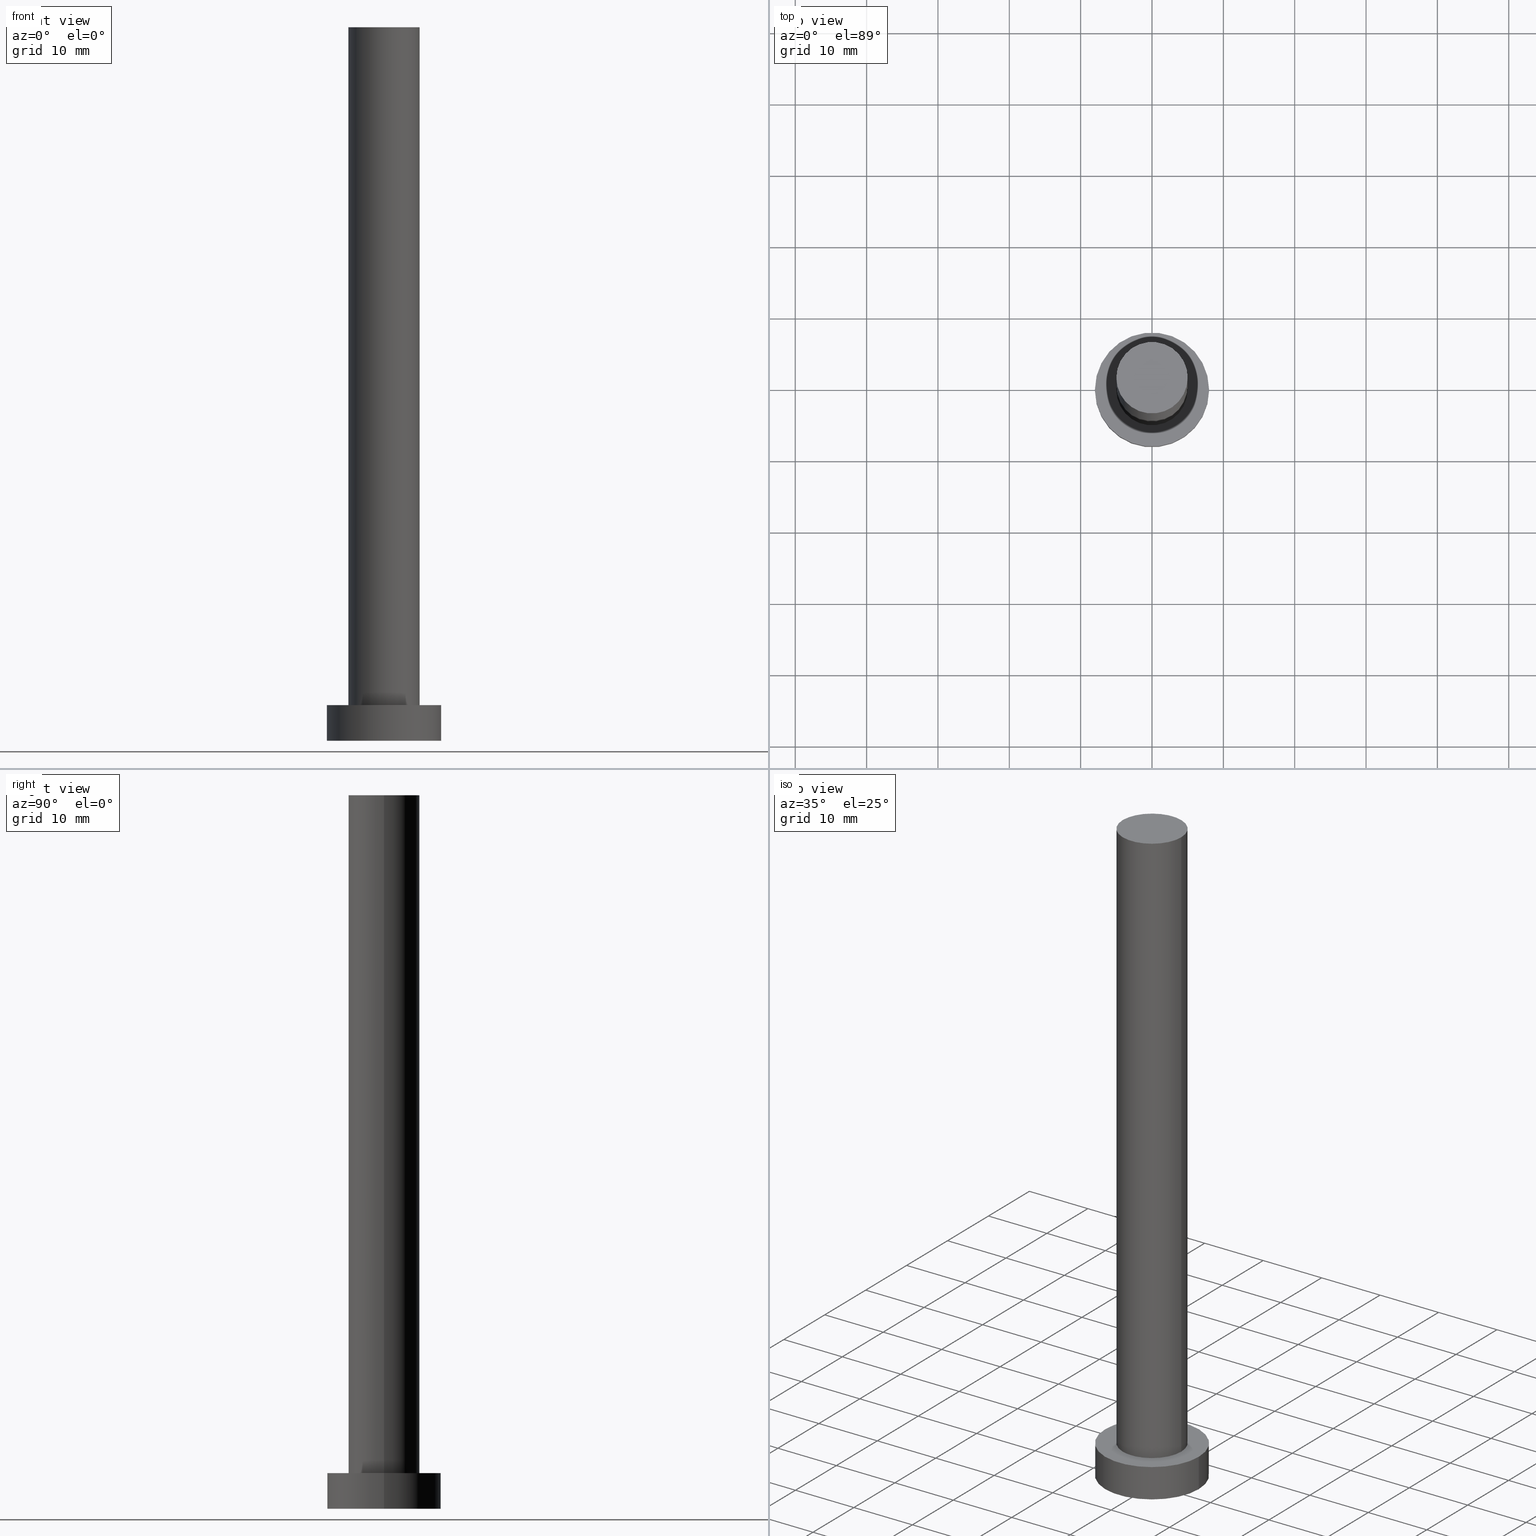
[diagram: canonical four-view strip — front | top / right | iso, engineering-drawing reading convention]
A machine part, canonical four-view strip (front | top / right | iso — engineering-drawing reading convention). The complete STEP part file that produces these views, byte-faithful:
ISO-10303-21;
HEADER;
FILE_DESCRIPTION (( 'STEP AP203' ),
    '1' );
FILE_NAME ('7cc5.STEP',
    '2023-02-13T10:49:55',
    ( '' ),
    ( '' ),
    'SwSTEP 2.0',
    'SolidWorks 2019',
    '' );
FILE_SCHEMA (( 'CONFIG_CONTROL_DESIGN' ));
ENDSEC;

DATA;
#1 = EDGE_CURVE ( 'NONE', #187, #216, #90, .T. ) ;
#2 = FACE_OUTER_BOUND ( 'NONE', #200, .T. ) ;
#3 = MANIFOLD_SOLID_BREP ( 'P�idat vysunut�m3', #101 ) ;
#4 = ORIENTED_EDGE ( 'NONE', *, *, #1, .T. ) ;
#5 = AXIS2_PLACEMENT_3D ( 'NONE', #51, #84, #244 ) ;
#6 = DIRECTION ( 'NONE',  ( 1.000000000000000000, 0.000000000000000000, 0.000000000000000000 ) ) ;
#7 = AXIS2_PLACEMENT_3D ( 'NONE', #144, #78, #122 ) ;
#8 = PRODUCT_DEFINITION ( 'NEZN�M�', '', #132, #175 ) ;
#9 = FACE_OUTER_BOUND ( 'NONE', #116, .T. ) ;
#10 = VECTOR ( 'NONE', #26, 1000.000000000000000 ) ;
#11 = LINE ( 'NONE', #228, #10 ) ;
#12 = CC_DESIGN_PERSON_AND_ORGANIZATION_ASSIGNMENT ( #53, #94, ( #132 ) ) ;
#13 = DIRECTION ( 'NONE',  ( -0.000000000000000000, -0.000000000000000000, -1.000000000000000000 ) ) ;
#14 = CARTESIAN_POINT ( 'NONE',  ( 8.000000000000000000, 9.797174393178825657E-16, 0.000000000000000000 ) ) ;
#15 = DATE_TIME_ROLE ( 'classification_date' ) ;
#16 = CARTESIAN_POINT ( 'NONE',  ( 0.000000000000000000, 0.000000000000000000, 5.000000000000000000 ) ) ;
#17 = DIRECTION ( 'NONE',  ( -0.000000000000000000, -0.000000000000000000, -1.000000000000000000 ) ) ;
#18 = CARTESIAN_POINT ( 'NONE',  ( 5.000000000000000888, 6.123233995736767268E-16, 100.0000000000000000 ) ) ;
#19 = PERSON_AND_ORGANIZATION ( #65, #207 ) ;
#20 = CIRCLE ( 'NONE', #138, 5.000000000000000888 ) ;
#21 = VERTEX_POINT ( 'NONE', #14 ) ;
#22 = CARTESIAN_POINT ( 'NONE',  ( -8.000000000000000000, 0.000000000000000000, 5.000000000000000000 ) ) ;
#23 = DIRECTION ( 'NONE',  ( 0.000000000000000000, 0.000000000000000000, 1.000000000000000000 ) ) ;
#24 = DIRECTION ( 'NONE',  ( 1.000000000000000000, 0.000000000000000000, -0.000000000000000000 ) ) ;
#25 = CC_DESIGN_APPROVAL ( #204, ( #132 ) ) ;
#26 = DIRECTION ( 'NONE',  ( -0.000000000000000000, -0.000000000000000000, -1.000000000000000000 ) ) ;
#27 = DIRECTION ( 'NONE',  ( -0.000000000000000000, -0.000000000000000000, -1.000000000000000000 ) ) ;
#28 = COORDINATED_UNIVERSAL_TIME_OFFSET ( 1, 0, .AHEAD. ) ;
#29 = APPLICATION_CONTEXT ( 'configuration controlled 3d designs of mechanical parts and assemblies' ) ;
#30 = DIRECTION ( 'NONE',  ( 1.000000000000000000, 0.000000000000000000, -0.000000000000000000 ) ) ;
#31 = EDGE_CURVE ( 'NONE', #136, #216, #93, .T. ) ;
#32 = APPROVAL_DATE_TIME ( #71, #160 ) ;
#33 = CYLINDRICAL_SURFACE ( 'NONE', #245, 5.000000000000000888 ) ;
#34 = ORIENTED_EDGE ( 'NONE', *, *, #211, .F. ) ;
#35 = DIRECTION ( 'NONE',  ( 1.000000000000000000, 0.000000000000000000, 0.000000000000000000 ) ) ;
#36 = DIRECTION ( 'NONE',  ( 1.000000000000000000, 0.000000000000000000, 0.000000000000000000 ) ) ;
#37 = ORIENTED_EDGE ( 'NONE', *, *, #217, .F. ) ;
#38 = AXIS2_PLACEMENT_3D ( 'NONE', #199, #220, #24 ) ;
#39 = ORIENTED_EDGE ( 'NONE', *, *, #217, .T. ) ;
#40 = DIRECTION ( 'NONE',  ( 0.000000000000000000, 0.000000000000000000, 1.000000000000000000 ) ) ;
#41 = PLANE ( 'NONE',  #7 ) ;
#42 = LOCAL_TIME ( 11, 49, 55.00000000000000000, #240 ) ;
#43 = CARTESIAN_POINT ( 'NONE',  ( 0.000000000000000000, 0.000000000000000000, 0.000000000000000000 ) ) ;
#44 = ORIENTED_EDGE ( 'NONE', *, *, #168, .F. ) ;
#45 = CARTESIAN_POINT ( 'NONE',  ( -8.000000000000000000, 0.000000000000000000, 0.000000000000000000 ) ) ;
#46 = CC_DESIGN_SECURITY_CLASSIFICATION ( #169, ( #132 ) ) ;
#47 = PERSON_AND_ORGANIZATION ( #65, #207 ) ;
#48 =( NAMED_UNIT ( * ) SI_UNIT ( $, .STERADIAN. ) SOLID_ANGLE_UNIT ( ) );
#49 = AXIS2_PLACEMENT_3D ( 'NONE', #146, #23, #233 ) ;
#50 = LOCAL_TIME ( 11, 49, 55.00000000000000000, #28 ) ;
#51 = CARTESIAN_POINT ( 'NONE',  ( 0.000000000000000000, 0.000000000000000000, 0.000000000000000000 ) ) ;
#52 = AXIS2_PLACEMENT_3D ( 'NONE', #250, #70, #161 ) ;
#53 = PERSON_AND_ORGANIZATION ( #65, #207 ) ;
#54 = APPROVAL_PERSON_ORGANIZATION ( #110, #160, #67 ) ;
#55 = EDGE_LOOP ( 'NONE', ( #127, #155, #139, #252 ) ) ;
#56 = AXIS2_PLACEMENT_3D ( 'NONE', #16, #95, #171 ) ;
#57 = EDGE_CURVE ( 'NONE', #141, #164, #150, .T. ) ;
#58 = DIRECTION ( 'NONE',  ( 1.000000000000000000, 0.000000000000000000, 0.000000000000000000 ) ) ;
#59 = FACE_OUTER_BOUND ( 'NONE', #66, .T. ) ;
#60 = CARTESIAN_POINT ( 'NONE',  ( 8.000000000000000000, 9.797174393178825657E-16, 5.000000000000000000 ) ) ;
#61 = EDGE_LOOP ( 'NONE', ( #194, #231 ) ) ;
#62 = CALENDAR_DATE ( 2023, 13, 2 ) ;
#63 = CC_DESIGN_APPROVAL ( #235, ( #8 ) ) ;
#64 = APPROVAL_DATE_TIME ( #107, #235 ) ;
#65 = PERSON ( 'NEUR�EN�', 'NEUR�EN�', 'NEUR�EN�', ('NEUR�EN�'), ('NEUR�EN�'), ('NEUR�EN�') ) ;
#66 = EDGE_LOOP ( 'NONE', ( #91, #253 ) ) ;
#67 = APPROVAL_ROLE ( '' ) ;
#68 = DIRECTION ( 'NONE',  ( 1.000000000000000000, 0.000000000000000000, 0.000000000000000000 ) ) ;
#69 = AXIS2_PLACEMENT_3D ( 'NONE', #117, #195, #68 ) ;
#70 = DIRECTION ( 'NONE',  ( -0.000000000000000000, -0.000000000000000000, -1.000000000000000000 ) ) ;
#71 = DATE_AND_TIME ( #206, #232 ) ;
#72 = ORIENTED_EDGE ( 'NONE', *, *, #183, .T. ) ;
#73 = CIRCLE ( 'NONE', #74, 5.000000000000000888 ) ;
#74 = AXIS2_PLACEMENT_3D ( 'NONE', #239, #125, #6 ) ;
#75 = ORIENTED_EDGE ( 'NONE', *, *, #224, .T. ) ;
#76 = UNCERTAINTY_MEASURE_WITH_UNIT (LENGTH_MEASURE( 1.000000000000000082E-05 ), #135, 'distance_accuracy_value', 'NONE');
#77 = ORIENTED_EDGE ( 'NONE', *, *, #168, .T. ) ;
#78 = DIRECTION ( 'NONE',  ( 0.000000000000000000, 0.000000000000000000, 1.000000000000000000 ) ) ;
#79 = CYLINDRICAL_SURFACE ( 'NONE', #157, 8.000000000000000000 ) ;
#80 = FACE_OUTER_BOUND ( 'NONE', #55, .T. ) ;
#81 = CALENDAR_DATE ( 2023, 13, 2 ) ;
#82 = FACE_OUTER_BOUND ( 'NONE', #172, .T. ) ;
#83 = CIRCLE ( 'NONE', #49, 8.000000000000000000 ) ;
#84 = DIRECTION ( 'NONE',  ( 0.000000000000000000, 0.000000000000000000, 1.000000000000000000 ) ) ;
#85 = CC_DESIGN_DATE_AND_TIME_ASSIGNMENT ( #251, #15, ( #169 ) ) ;
#86 = PERSON_AND_ORGANIZATION ( #65, #207 ) ;
#87 = CARTESIAN_POINT ( 'NONE',  ( 0.000000000000000000, 0.000000000000000000, 0.000000000000000000 ) ) ;
#88 = LOCAL_TIME ( 11, 49, 55.00000000000000000, #225 ) ;
#89 = EDGE_CURVE ( 'NONE', #208, #136, #20, .T. ) ;
#90 = CIRCLE ( 'NONE', #69, 5.000000000000000888 ) ;
#91 = ORIENTED_EDGE ( 'NONE', *, *, #89, .T. ) ;
#92 = COORDINATED_UNIVERSAL_TIME_OFFSET ( 1, 0, .AHEAD. ) ;
#93 = LINE ( 'NONE', #18, #237 ) ;
#94 = PERSON_AND_ORGANIZATION_ROLE ( 'design_supplier' ) ;
#95 = DIRECTION ( 'NONE',  ( 0.000000000000000000, 0.000000000000000000, 1.000000000000000000 ) ) ;
#96 = CARTESIAN_POINT ( 'NONE',  ( 0.000000000000000000, 0.000000000000000000, 100.0000000000000000 ) ) ;
#97 = CALENDAR_DATE ( 2023, 13, 2 ) ;
#98 = PRODUCT_DEFINITION_SHAPE ( 'NONE', 'NONE',  #8 ) ;
#99 = DIRECTION ( 'NONE',  ( 0.000000000000000000, 0.000000000000000000, 1.000000000000000000 ) ) ;
#100 = CYLINDRICAL_SURFACE ( 'NONE', #52, 5.000000000000000888 ) ;
#101 = CLOSED_SHELL ( 'NONE', ( #170, #197, #214, #142, #241, #112, #165 ) ) ;
#102 = DIRECTION ( 'NONE',  ( -1.000000000000000000, 0.000000000000000000, 0.000000000000000000 ) ) ;
#103 = EDGE_LOOP ( 'NONE', ( #179, #234, #39, #4 ) ) ;
#104 = DIRECTION ( 'NONE',  ( 0.000000000000000000, 0.000000000000000000, 1.000000000000000000 ) ) ;
#105 = CIRCLE ( 'NONE', #56, 5.000000000000000888 ) ;
#106 =( NAMED_UNIT ( * ) PLANE_ANGLE_UNIT ( ) SI_UNIT ( $, .RADIAN. ) );
#107 = DATE_AND_TIME ( #81, #88 ) ;
#108 = PERSON_AND_ORGANIZATION_ROLE ( 'creator' ) ;
#109 = AXIS2_PLACEMENT_3D ( 'NONE', #87, #104, #30 ) ;
#110 = PERSON_AND_ORGANIZATION ( #65, #207 ) ;
#111 = CARTESIAN_POINT ( 'NONE',  ( 0.000000000000000000, 0.000000000000000000, 100.0000000000000000 ) ) ;
#112 = ADVANCED_FACE ( 'NONE', ( #174 ), #100, .T. ) ;
#113 = EDGE_LOOP ( 'NONE', ( #34, #191, #72, #37 ) ) ;
#114 =( GEOMETRIC_REPRESENTATION_CONTEXT ( 3 ) GLOBAL_UNCERTAINTY_ASSIGNED_CONTEXT ( ( #76 ) ) GLOBAL_UNIT_ASSIGNED_CONTEXT ( ( #135, #106, #48 ) ) REPRESENTATION_CONTEXT ( 'NONE', 'WORKASPACE' ) );
#115 = COORDINATED_UNIVERSAL_TIME_OFFSET ( 1, 0, .AHEAD. ) ;
#116 = EDGE_LOOP ( 'NONE', ( #189, #44 ) ) ;
#117 = CARTESIAN_POINT ( 'NONE',  ( 0.000000000000000000, 0.000000000000000000, 5.000000000000000000 ) ) ;
#118 = CARTESIAN_POINT ( 'NONE',  ( 0.000000000000000000, 0.000000000000000000, 5.000000000000000000 ) ) ;
#119 = CC_DESIGN_PERSON_AND_ORGANIZATION_ASSIGNMENT ( #19, #108, ( #132 ) ) ;
#120 = DIRECTION ( 'NONE',  ( -1.000000000000000000, 0.000000000000000000, 0.000000000000000000 ) ) ;
#121 = AXIS2_PLACEMENT_3D ( 'NONE', #159, #176, #120 ) ;
#122 = DIRECTION ( 'NONE',  ( 1.000000000000000000, 0.000000000000000000, -0.000000000000000000 ) ) ;
#123 = CARTESIAN_POINT ( 'NONE',  ( 5.000000000000000888, 6.123233995736767268E-16, 100.0000000000000000 ) ) ;
#124 = APPLICATION_CONTEXT ( 'configuration controlled 3d designs of mechanical parts and assemblies' ) ;
#125 = DIRECTION ( 'NONE',  ( 0.000000000000000000, 0.000000000000000000, 1.000000000000000000 ) ) ;
#126 = LINE ( 'NONE', #22, #227 ) ;
#127 = ORIENTED_EDGE ( 'NONE', *, *, #224, .F. ) ;
#128 = CARTESIAN_POINT ( 'NONE',  ( 0.000000000000000000, 0.000000000000000000, 5.000000000000000000 ) ) ;
#129 = CC_DESIGN_APPROVAL ( #160, ( #169 ) ) ;
#130 = EDGE_CURVE ( 'NONE', #141, #137, #126, .T. ) ;
#131 = APPROVAL_STATUS ( 'not_yet_approved' ) ;
#132 = PRODUCT_DEFINITION_FORMATION_WITH_SPECIFIED_SOURCE ( 'LIBOVOLN�', '', #154, .NOT_KNOWN. ) ;
#133 = PERSON_AND_ORGANIZATION_ROLE ( 'design_owner' ) ;
#134 = AXIS2_PLACEMENT_3D ( 'NONE', #156, #229, #35 ) ;
#135 =( LENGTH_UNIT ( ) NAMED_UNIT ( * ) SI_UNIT ( .MILLI., .METRE. ) );
#136 = VERTEX_POINT ( 'NONE', #123 ) ;
#137 = VERTEX_POINT ( 'NONE', #45 ) ;
#138 = AXIS2_PLACEMENT_3D ( 'NONE', #96, #213, #36 ) ;
#139 = ORIENTED_EDGE ( 'NONE', *, *, #130, .T. ) ;
#140 = VECTOR ( 'NONE', #148, 1000.000000000000000 ) ;
#141 = VERTEX_POINT ( 'NONE', #218 ) ;
#142 = ADVANCED_FACE ( 'NONE', ( #221, #82 ), #41, .T. ) ;
#143 = CARTESIAN_POINT ( 'NONE',  ( -5.000000000000000888, 0.000000000000000000, 100.0000000000000000 ) ) ;
#144 = CARTESIAN_POINT ( 'NONE',  ( 0.000000000000000000, 0.000000000000000000, 5.000000000000000000 ) ) ;
#145 = PLANE ( 'NONE',  #38 ) ;
#146 = CARTESIAN_POINT ( 'NONE',  ( 0.000000000000000000, 0.000000000000000000, 0.000000000000000000 ) ) ;
#147 = ORIENTED_EDGE ( 'NONE', *, *, #212, .F. ) ;
#148 = DIRECTION ( 'NONE',  ( -0.000000000000000000, -0.000000000000000000, -1.000000000000000000 ) ) ;
#149 = DATE_AND_TIME ( #62, #42 ) ;
#150 = CIRCLE ( 'NONE', #134, 8.000000000000000000 ) ;
#151 = APPLICATION_PROTOCOL_DEFINITION ( 'international standard', 'config_control_design', 1994, #124 ) ;
#152 = MECHANICAL_CONTEXT ( 'NONE', #29, 'mechanical' ) ;
#153 = PLANE ( 'NONE',  #109 ) ;
#154 = PRODUCT ( '7cc5', '7cc5', '', ( #152 ) ) ;
#155 = ORIENTED_EDGE ( 'NONE', *, *, #57, .F. ) ;
#156 = CARTESIAN_POINT ( 'NONE',  ( 0.000000000000000000, 0.000000000000000000, 5.000000000000000000 ) ) ;
#157 = AXIS2_PLACEMENT_3D ( 'NONE', #128, #163, #102 ) ;
#158 = ORIENTED_EDGE ( 'NONE', *, *, #130, .F. ) ;
#159 = CARTESIAN_POINT ( 'NONE',  ( 0.000000000000000000, 0.000000000000000000, 5.000000000000000000 ) ) ;
#160 = APPROVAL ( #190, 'NEUR�EN�' ) ;
#161 = DIRECTION ( 'NONE',  ( -1.000000000000000000, 0.000000000000000000, 0.000000000000000000 ) ) ;
#162 = APPROVAL_PERSON_ORGANIZATION ( #47, #204, #226 ) ;
#163 = DIRECTION ( 'NONE',  ( -0.000000000000000000, -0.000000000000000000, -1.000000000000000000 ) ) ;
#164 = VERTEX_POINT ( 'NONE', #60 ) ;
#165 = ADVANCED_FACE ( 'NONE', ( #59 ), #145, .T. ) ;
#166 = PERSON_AND_ORGANIZATION ( #65, #207 ) ;
#167 = APPROVAL_STATUS ( 'not_yet_approved' ) ;
#168 = EDGE_CURVE ( 'NONE', #21, #137, #180, .T. ) ;
#169 = SECURITY_CLASSIFICATION ( '', '', #230 ) ;
#170 = ADVANCED_FACE ( 'NONE', ( #215 ), #33, .T. ) ;
#171 = DIRECTION ( 'NONE',  ( 1.000000000000000000, 0.000000000000000000, 0.000000000000000000 ) ) ;
#172 = EDGE_LOOP ( 'NONE', ( #238, #247 ) ) ;
#173 = DIRECTION ( 'NONE',  ( 1.000000000000000000, 0.000000000000000000, 0.000000000000000000 ) ) ;
#174 = FACE_OUTER_BOUND ( 'NONE', #103, .T. ) ;
#175 = DESIGN_CONTEXT ( 'detailed design', #124, 'design' ) ;
#176 = DIRECTION ( 'NONE',  ( -0.000000000000000000, -0.000000000000000000, -1.000000000000000000 ) ) ;
#177 = LINE ( 'NONE', #219, #140 ) ;
#178 = CC_DESIGN_DATE_AND_TIME_ASSIGNMENT ( #149, #223, ( #8 ) ) ;
#179 = ORIENTED_EDGE ( 'NONE', *, *, #31, .F. ) ;
#180 = CIRCLE ( 'NONE', #242, 8.000000000000000000 ) ;
#181 = PERSON_AND_ORGANIZATION ( #65, #207 ) ;
#182 = APPLICATION_PROTOCOL_DEFINITION ( 'international standard', 'config_control_design', 1994, #29 ) ;
#183 = EDGE_CURVE ( 'NONE', #216, #187, #105, .T. ) ;
#184 = PERSON_AND_ORGANIZATION_ROLE ( 'creator' ) ;
#185 = CC_DESIGN_PERSON_AND_ORGANIZATION_ASSIGNMENT ( #209, #205, ( #169 ) ) ;
#186 = DATE_AND_TIME ( #193, #50 ) ;
#187 = VERTEX_POINT ( 'NONE', #249 ) ;
#188 = DIRECTION ( 'NONE',  ( -1.000000000000000000, 0.000000000000000000, 0.000000000000000000 ) ) ;
#189 = ORIENTED_EDGE ( 'NONE', *, *, #203, .F. ) ;
#190 = APPROVAL_STATUS ( 'not_yet_approved' ) ;
#191 = ORIENTED_EDGE ( 'NONE', *, *, #31, .T. ) ;
#192 = LOCAL_TIME ( 11, 49, 55.00000000000000000, #115 ) ;
#193 = CALENDAR_DATE ( 2023, 13, 2 ) ;
#194 = ORIENTED_EDGE ( 'NONE', *, *, #1, .F. ) ;
#195 = DIRECTION ( 'NONE',  ( 0.000000000000000000, 0.000000000000000000, 1.000000000000000000 ) ) ;
#196 = CC_DESIGN_PERSON_AND_ORGANIZATION_ASSIGNMENT ( #86, #133, ( #154 ) ) ;
#197 = ADVANCED_FACE ( 'NONE', ( #2 ), #79, .T. ) ;
#198 = CARTESIAN_POINT ( 'NONE',  ( 5.000000000000000888, 6.123233995736767268E-16, 5.000000000000000000 ) ) ;
#199 = CARTESIAN_POINT ( 'NONE',  ( 0.000000000000000000, 0.000000000000000000, 100.0000000000000000 ) ) ;
#200 = EDGE_LOOP ( 'NONE', ( #147, #75, #77, #158 ) ) ;
#201 = CIRCLE ( 'NONE', #254, 8.000000000000000000 ) ;
#202 = CC_DESIGN_PERSON_AND_ORGANIZATION_ASSIGNMENT ( #166, #184, ( #8 ) ) ;
#203 = EDGE_CURVE ( 'NONE', #137, #21, #83, .T. ) ;
#204 = APPROVAL ( #131, 'NEUR�EN�' ) ;
#205 = PERSON_AND_ORGANIZATION_ROLE ( 'classification_officer' ) ;
#206 = CALENDAR_DATE ( 2023, 13, 2 ) ;
#207 = ORGANIZATION ( 'NEUR�EN�', 'NEUR�EN�', '' ) ;
#208 = VERTEX_POINT ( 'NONE', #143 ) ;
#209 = PERSON_AND_ORGANIZATION ( #65, #207 ) ;
#210 = SHAPE_DEFINITION_REPRESENTATION ( #98, #255 ) ;
#211 = EDGE_CURVE ( 'NONE', #136, #208, #73, .T. ) ;
#212 = EDGE_CURVE ( 'NONE', #164, #141, #201, .T. ) ;
#213 = DIRECTION ( 'NONE',  ( 0.000000000000000000, 0.000000000000000000, 1.000000000000000000 ) ) ;
#214 = ADVANCED_FACE ( 'NONE', ( #80 ), #222, .T. ) ;
#215 = FACE_OUTER_BOUND ( 'NONE', #113, .T. ) ;
#216 = VERTEX_POINT ( 'NONE', #198 ) ;
#217 = EDGE_CURVE ( 'NONE', #208, #187, #177, .T. ) ;
#218 = CARTESIAN_POINT ( 'NONE',  ( -8.000000000000000000, 0.000000000000000000, 5.000000000000000000 ) ) ;
#219 = CARTESIAN_POINT ( 'NONE',  ( -5.000000000000000888, 0.000000000000000000, 100.0000000000000000 ) ) ;
#220 = DIRECTION ( 'NONE',  ( 0.000000000000000000, 0.000000000000000000, 1.000000000000000000 ) ) ;
#221 = FACE_BOUND ( 'NONE', #61, .T. ) ;
#222 = CYLINDRICAL_SURFACE ( 'NONE', #121, 8.000000000000000000 ) ;
#223 = DATE_TIME_ROLE ( 'creation_date' ) ;
#224 = EDGE_CURVE ( 'NONE', #164, #21, #11, .T. ) ;
#225 = COORDINATED_UNIVERSAL_TIME_OFFSET ( 1, 0, .AHEAD. ) ;
#226 = APPROVAL_ROLE ( '' ) ;
#227 = VECTOR ( 'NONE', #27, 1000.000000000000000 ) ;
#228 = CARTESIAN_POINT ( 'NONE',  ( 8.000000000000000000, 9.797174393178825657E-16, 5.000000000000000000 ) ) ;
#229 = DIRECTION ( 'NONE',  ( 0.000000000000000000, 0.000000000000000000, 1.000000000000000000 ) ) ;
#230 = SECURITY_CLASSIFICATION_LEVEL ( 'unclassified' ) ;
#231 = ORIENTED_EDGE ( 'NONE', *, *, #183, .F. ) ;
#232 = LOCAL_TIME ( 11, 49, 55.00000000000000000, #92 ) ;
#233 = DIRECTION ( 'NONE',  ( 1.000000000000000000, 0.000000000000000000, 0.000000000000000000 ) ) ;
#234 = ORIENTED_EDGE ( 'NONE', *, *, #89, .F. ) ;
#235 = APPROVAL ( #167, 'NEUR�EN�' ) ;
#236 = APPROVAL_PERSON_ORGANIZATION ( #181, #235, #243 ) ;
#237 = VECTOR ( 'NONE', #17, 1000.000000000000000 ) ;
#238 = ORIENTED_EDGE ( 'NONE', *, *, #57, .T. ) ;
#239 = CARTESIAN_POINT ( 'NONE',  ( 0.000000000000000000, 0.000000000000000000, 100.0000000000000000 ) ) ;
#240 = COORDINATED_UNIVERSAL_TIME_OFFSET ( 1, 0, .AHEAD. ) ;
#241 = ADVANCED_FACE ( 'NONE', ( #9 ), #153, .F. ) ;
#242 = AXIS2_PLACEMENT_3D ( 'NONE', #43, #99, #173 ) ;
#243 = APPROVAL_ROLE ( '' ) ;
#244 = DIRECTION ( 'NONE',  ( 1.000000000000000000, 0.000000000000000000, 0.000000000000000000 ) ) ;
#245 = AXIS2_PLACEMENT_3D ( 'NONE', #111, #13, #188 ) ;
#246 = PRODUCT_RELATED_PRODUCT_CATEGORY ( 'detail', '', ( #154 ) ) ;
#247 = ORIENTED_EDGE ( 'NONE', *, *, #212, .T. ) ;
#248 = APPROVAL_DATE_TIME ( #186, #204 ) ;
#249 = CARTESIAN_POINT ( 'NONE',  ( -5.000000000000000888, 0.000000000000000000, 5.000000000000000000 ) ) ;
#250 = CARTESIAN_POINT ( 'NONE',  ( 0.000000000000000000, 0.000000000000000000, 100.0000000000000000 ) ) ;
#251 = DATE_AND_TIME ( #97, #192 ) ;
#252 = ORIENTED_EDGE ( 'NONE', *, *, #203, .T. ) ;
#253 = ORIENTED_EDGE ( 'NONE', *, *, #211, .T. ) ;
#254 = AXIS2_PLACEMENT_3D ( 'NONE', #118, #40, #58 ) ;
#255 = ADVANCED_BREP_SHAPE_REPRESENTATION ( '7cc5', ( #3, #5 ), #114 ) ;
ENDSEC;
END-ISO-10303-21;
